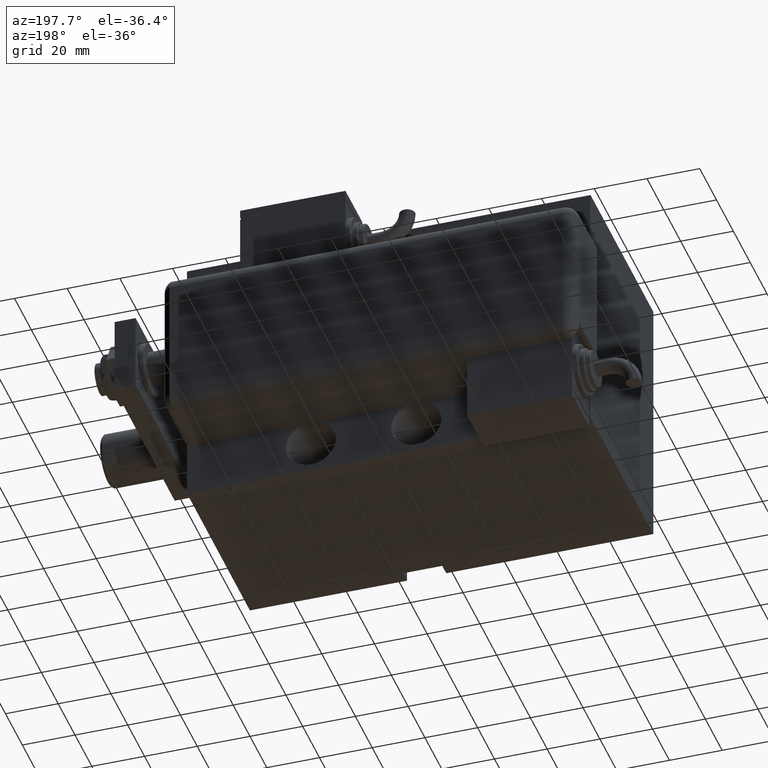
[diagram: clean part render]
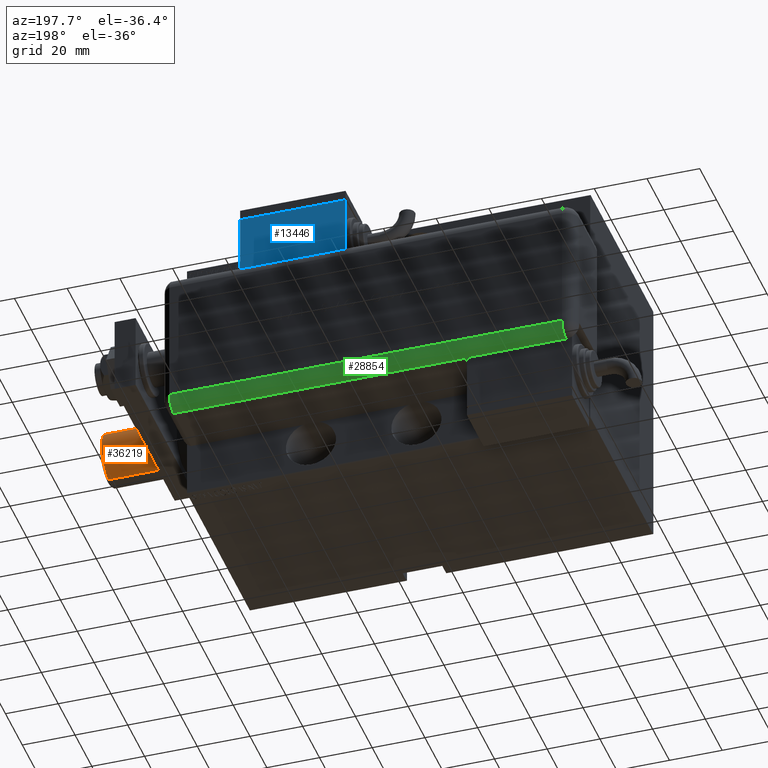
[diagram: same view with three faces highlighted in distinct colors, each labeled with its STEP entity id]
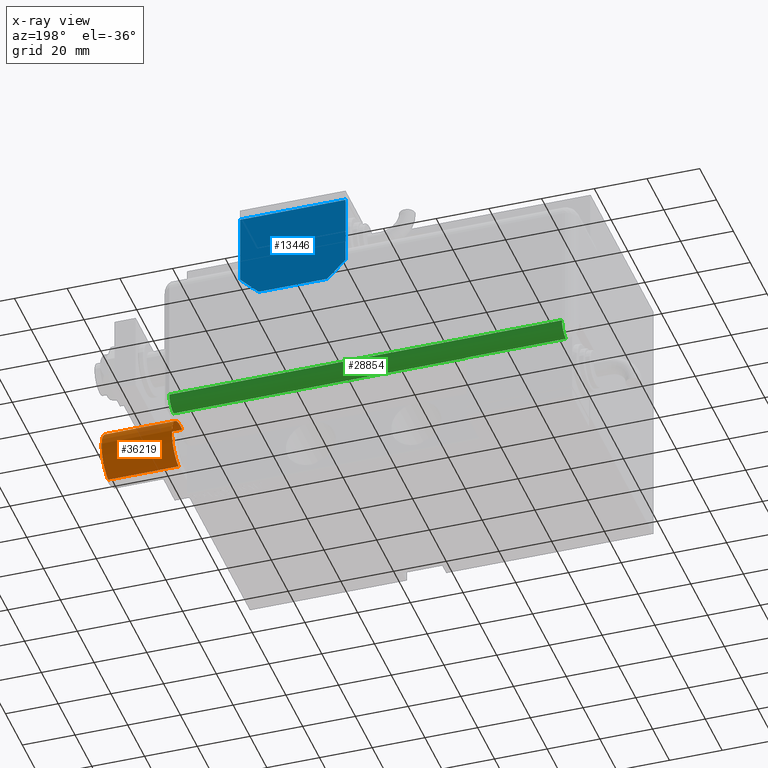
[diagram: x-ray of the same camera — body ghosted, the three highlighted faces saturated]
A machine part, auxiliary view with three faces highlighted in distinct colors.
The next image is the same camera in x-ray (body ghosted, the three faces saturated) — at least one of them is partly hidden behind the body in this view.
Their STEP definitions:

[orange] entity #36219 — the highlighted cylindrical surface (edge-blend (fillet) strip) has radius 10 mm, axis along (1, 0, -0).
#2151 = ORIENTED_EDGE ( 'NONE', *, *, #20491, .T. ) ;
#3145 = VECTOR ( 'NONE', #24875, 1000.000000000000000 ) ;
#3932 = VECTOR ( 'NONE', #18437, 1000.000000000000000 ) ;
#7261 = CARTESIAN_POINT ( 'NONE',  ( -10.00000000000000000, 0.000000000000000000, 27.50000000000000000 ) ) ;
#8634 = CARTESIAN_POINT ( 'NONE',  ( -10.00000000000000000, 0.000000000000000000, 0.7999999999999986011 ) ) ;
#10111 = CARTESIAN_POINT ( 'NONE',  ( 0.000000000000000000, 0.000000000000000000, 0.7999999999999986011 ) ) ;
#10425 = CYLINDRICAL_SURFACE ( 'NONE', #22939, 10.00000000000000000 ) ;
#11224 = VERTEX_POINT ( 'NONE', #42647 ) ;
#12083 = EDGE_CURVE ( 'NONE', #37926, #19839, #30976, .T. ) ;
#15507 = DIRECTION ( 'NONE',  ( 0.000000000000000000, 0.000000000000000000, 1.000000000000000000 ) ) ;
#17076 = DIRECTION ( 'NONE',  ( 1.000000000000000000, 0.000000000000000000, 0.000000000000000000 ) ) ;
#18437 = DIRECTION ( 'NONE',  ( -0.000000000000000000, -0.000000000000000000, -1.000000000000000000 ) ) ;
#19839 = VERTEX_POINT ( 'NONE', #8634 ) ;
#20491 = EDGE_CURVE ( 'NONE', #11224, #37926, #37571, .T. ) ;
#20596 = CARTESIAN_POINT ( 'NONE',  ( 10.00000000000000000, 1.224646799147353256E-15, 0.7999999999999986011 ) ) ;
#22115 = ORIENTED_EDGE ( 'NONE', *, *, #36572, .F. ) ;
#22692 = CARTESIAN_POINT ( 'NONE',  ( 10.00000000000000000, 1.224646799147353256E-15, 27.50000000000000000 ) ) ;
#22939 = AXIS2_PLACEMENT_3D ( 'NONE', #42661, #56941, #23498 ) ;
#23498 = DIRECTION ( 'NONE',  ( -1.000000000000000000, 0.000000000000000000, 0.000000000000000000 ) ) ;
#24080 = FACE_OUTER_BOUND ( 'NONE', #50498, .T. ) ;
#24818 = AXIS2_PLACEMENT_3D ( 'NONE', #34357, #15507, #57766 ) ;
#24875 = DIRECTION ( 'NONE',  ( -0.000000000000000000, -0.000000000000000000, -1.000000000000000000 ) ) ;
#25496 = ORIENTED_EDGE ( 'NONE', *, *, #12083, .T. ) ;
#28633 = DIRECTION ( 'NONE',  ( -0.000000000000000000, -0.000000000000000000, 1.000000000000000000 ) ) ;
#30976 = CIRCLE ( 'NONE', #40718, 10.00000000000000000 ) ;
#34357 = CARTESIAN_POINT ( 'NONE',  ( 0.000000000000000000, 0.000000000000000000, 27.50000000000000000 ) ) ;
#36219 = ADVANCED_FACE ( 'NONE', ( #24080 ), #10425, .T. ) ;
#36572 = EDGE_CURVE ( 'NONE', #11224, #59227, #51071, .T. ) ;
#37571 = LINE ( 'NONE', #22692, #3932 ) ;
#37926 = VERTEX_POINT ( 'NONE', #20596 ) ;
#40718 = AXIS2_PLACEMENT_3D ( 'NONE', #10111, #28633, #17076 ) ;
#42647 = CARTESIAN_POINT ( 'NONE',  ( 10.00000000000000000, 1.224646799147353256E-15, 27.50000000000000000 ) ) ;
#42661 = CARTESIAN_POINT ( 'NONE',  ( 0.000000000000000000, 0.000000000000000000, 27.50000000000000000 ) ) ;
#50498 = EDGE_LOOP ( 'NONE', ( #22115, #2151, #25496, #59147 ) ) ;
#51071 = CIRCLE ( 'NONE', #24818, 10.00000000000000000 ) ;
#52007 = CARTESIAN_POINT ( 'NONE',  ( -10.00000000000000000, 0.000000000000000000, 27.50000000000000000 ) ) ;
#52864 = LINE ( 'NONE', #7261, #3145 ) ;
#56075 = EDGE_CURVE ( 'NONE', #59227, #19839, #52864, .T. ) ;
#56941 = DIRECTION ( 'NONE',  ( -0.000000000000000000, -0.000000000000000000, -1.000000000000000000 ) ) ;
#57766 = DIRECTION ( 'NONE',  ( 1.000000000000000000, 0.000000000000000000, 0.000000000000000000 ) ) ;
#59147 = ORIENTED_EDGE ( 'NONE', *, *, #56075, .F. ) ;
#59227 = VERTEX_POINT ( 'NONE', #52007 ) ;

[blue] entity #13446 — the highlighted planar face has unit normal (0, 1, 0).
#3151 = EDGE_CURVE ( 'NONE', #9982, #7809, #26669, .T. ) ;
#4293 = CARTESIAN_POINT ( 'NONE',  ( -19.99999999999994316, -13.49999999999996092, 10.00000000000000000 ) ) ;
#4588 = DIRECTION ( 'NONE',  ( -1.284980352575421081E-16, -1.000000000000000000, -0.000000000000000000 ) ) ;
#5105 = CARTESIAN_POINT ( 'NONE',  ( 0.000000000000000000, 0.000000000000000000, 10.00000000000000000 ) ) ;
#5620 = EDGE_CURVE ( 'NONE', #41910, #9982, #35901, .T. ) ;
#6488 = EDGE_LOOP ( 'NONE', ( #27914, #43206, #8975, #29146, #46247, #18135, #35034 ) ) ;
#7809 = VERTEX_POINT ( 'NONE', #32777 ) ;
#7933 = CARTESIAN_POINT ( 'NONE',  ( 9.999999999999984013, 23.50000000000009592, 10.00000000000000000 ) ) ;
#8975 = ORIENTED_EDGE ( 'NONE', *, *, #45578, .T. ) ;
#9982 = VERTEX_POINT ( 'NONE', #42182 ) ;
#11278 = VECTOR ( 'NONE', #26466, 1000.000000000000114 ) ;
#13446 = ADVANCED_FACE ( 'NONE', ( #14235 ), #56790, .T. ) ;
#13657 = CARTESIAN_POINT ( 'NONE',  ( 20.00000000000005329, -13.49999999999996092, 10.00000000000000000 ) ) ;
#14235 = FACE_OUTER_BOUND ( 'NONE', #6488, .T. ) ;
#14540 = VECTOR ( 'NONE', #43845, 1000.000000000000000 ) ;
#15140 = DIRECTION ( 'NONE',  ( -1.284980352575421081E-16, -1.000000000000000000, -0.000000000000000000 ) ) ;
#17550 = VECTOR ( 'NONE', #4588, 1000.000000000000000 ) ;
#18135 = ORIENTED_EDGE ( 'NONE', *, *, #49076, .T. ) ;
#18506 = LINE ( 'NONE', #13657, #49544 ) ;
#19615 = VECTOR ( 'NONE', #15140, 1000.000000000000000 ) ;
#19689 = LINE ( 'NONE', #38248, #19615 ) ;
#20056 = VECTOR ( 'NONE', #41287, 1000.000000000000000 ) ;
#21720 = VERTEX_POINT ( 'NONE', #38708 ) ;
#24203 = VECTOR ( 'NONE', #52152, 1000.000000000000000 ) ;
#24239 = DIRECTION ( 'NONE',  ( 0.000000000000000000, 0.000000000000000000, 1.000000000000000000 ) ) ;
#24871 = EDGE_CURVE ( 'NONE', #34765, #21720, #19689, .T. ) ;
#25891 = CARTESIAN_POINT ( 'NONE',  ( -19.99999999999993960, 13.49999999999986500, 10.00000000000000000 ) ) ;
#26466 = DIRECTION ( 'NONE',  ( -0.7071067811865479058, 0.7071067811865470176, -0.000000000000000000 ) ) ;
#26669 = LINE ( 'NONE', #45252, #20056 ) ;
#27914 = ORIENTED_EDGE ( 'NONE', *, *, #5620, .T. ) ;
#28087 = CARTESIAN_POINT ( 'NONE',  ( 20.00000000000005329, -13.49999999999996092, 10.00000000000000000 ) ) ;
#29146 = ORIENTED_EDGE ( 'NONE', *, *, #24871, .T. ) ;
#29844 = LINE ( 'NONE', #25891, #14540 ) ;
#32777 = CARTESIAN_POINT ( 'NONE',  ( -12.99999999999994138, 20.50000000000009592, 10.00000000000000000 ) ) ;
#34695 = CARTESIAN_POINT ( 'NONE',  ( 20.00000000000005684, 13.50000000000003730, 10.00000000000000000 ) ) ;
#34765 = VERTEX_POINT ( 'NONE', #47801 ) ;
#34817 = CARTESIAN_POINT ( 'NONE',  ( -19.99999999999994316, -13.49999999999996092, 10.00000000000000000 ) ) ;
#35034 = ORIENTED_EDGE ( 'NONE', *, *, #49775, .T. ) ;
#35901 = LINE ( 'NONE', #7933, #11278 ) ;
#38248 = CARTESIAN_POINT ( 'NONE',  ( -19.99999999999994316, -13.49999999999996092, 10.00000000000000000 ) ) ;
#38708 = CARTESIAN_POINT ( 'NONE',  ( -19.99999999999993960, 2.569960705150834076E-15, 10.00000000000000000 ) ) ;
#41287 = DIRECTION ( 'NONE',  ( -1.000000000000000000, 0.000000000000000000, 0.000000000000000000 ) ) ;
#41910 = VERTEX_POINT ( 'NONE', #34695 ) ;
#42182 = CARTESIAN_POINT ( 'NONE',  ( 12.99999999999999112, 20.50000000000009592, 10.00000000000000000 ) ) ;
#43206 = ORIENTED_EDGE ( 'NONE', *, *, #3151, .T. ) ;
#43656 = AXIS2_PLACEMENT_3D ( 'NONE', #5105, #24239, #57092 ) ;
#43845 = DIRECTION ( 'NONE',  ( -0.7071067811865356934, -0.7071067811865593411, -0.000000000000000000 ) ) ;
#45252 = CARTESIAN_POINT ( 'NONE',  ( -10.00000000000004086, 20.50000000000009592, 10.00000000000000000 ) ) ;
#45578 = EDGE_CURVE ( 'NONE', #7809, #34765, #29844, .T. ) ;
#46247 = ORIENTED_EDGE ( 'NONE', *, *, #52506, .T. ) ;
#47593 = CARTESIAN_POINT ( 'NONE',  ( -19.99999999999994316, -13.49999999999996092, 10.00000000000000000 ) ) ;
#47801 = CARTESIAN_POINT ( 'NONE',  ( -19.99999999999993960, 13.49999999999986500, 10.00000000000000000 ) ) ;
#49076 = EDGE_CURVE ( 'NONE', #49127, #54629, #52746, .T. ) ;
#49127 = VERTEX_POINT ( 'NONE', #34817 ) ;
#49544 = VECTOR ( 'NONE', #50466, 1000.000000000000000 ) ;
#49775 = EDGE_CURVE ( 'NONE', #54629, #41910, #18506, .T. ) ;
#50466 = DIRECTION ( 'NONE',  ( 1.284980352575412699E-16, 1.000000000000000000, 0.000000000000000000 ) ) ;
#50530 = LINE ( 'NONE', #4293, #17550 ) ;
#52152 = DIRECTION ( 'NONE',  ( 1.000000000000000000, 0.000000000000000000, 0.000000000000000000 ) ) ;
#52506 = EDGE_CURVE ( 'NONE', #21720, #49127, #50530, .T. ) ;
#52746 = LINE ( 'NONE', #47593, #24203 ) ;
#54629 = VERTEX_POINT ( 'NONE', #28087 ) ;
#56790 = PLANE ( 'NONE',  #43656 ) ;
#57092 = DIRECTION ( 'NONE',  ( 1.000000000000000000, 0.000000000000000000, -0.000000000000000000 ) ) ;

[green] entity #28854 — the highlighted cylindrical surface (edge-blend (fillet) strip) has radius 5 mm, axis along (-1, -0, -0).
#373 = CARTESIAN_POINT ( 'NONE',  ( 23.99999999999999289, 25.79999999999998295, 154.0000000000000000 ) ) ;
#513 = AXIS2_PLACEMENT_3D ( 'NONE', #13685, #23969, #19416 ) ;
#1646 = LINE ( 'NONE', #20173, #58803 ) ;
#2351 = VERTEX_POINT ( 'NONE', #33919 ) ;
#2694 = ORIENTED_EDGE ( 'NONE', *, *, #46808, .F. ) ;
#4028 = DIRECTION ( 'NONE',  ( -0.000000000000000000, -0.000000000000000000, 1.000000000000000000 ) ) ;
#4048 = ORIENTED_EDGE ( 'NONE', *, *, #25225, .T. ) ;
#7094 = ORIENTED_EDGE ( 'NONE', *, *, #22507, .F. ) ;
#7928 = CIRCLE ( 'NONE', #39983, 5.000000000000000888 ) ;
#8235 = ORIENTED_EDGE ( 'NONE', *, *, #30272, .F. ) ;
#10098 = LINE ( 'NONE', #373, #47595 ) ;
#10604 = ORIENTED_EDGE ( 'NONE', *, *, #16329, .F. ) ;
#12074 = VERTEX_POINT ( 'NONE', #42344 ) ;
#13685 = CARTESIAN_POINT ( 'NONE',  ( 23.99999999999999289, 20.79999999999998295, 154.0000000000000000 ) ) ;
#14653 = DIRECTION ( 'NONE',  ( 0.000000000000000000, 0.000000000000000000, -1.000000000000000000 ) ) ;
#16301 = DIRECTION ( 'NONE',  ( 1.000000000000000000, -6.383782391594648845E-14, 0.000000000000000000 ) ) ;
#16329 = EDGE_CURVE ( 'NONE', #22068, #12074, #10098, .T. ) ;
#17278 = ORIENTED_EDGE ( 'NONE', *, *, #40020, .F. ) ;
#19416 = DIRECTION ( 'NONE',  ( -1.000000000000000000, 0.000000000000000000, 0.000000000000000000 ) ) ;
#20173 = CARTESIAN_POINT ( 'NONE',  ( 28.99599839871871154, 20.99999999999997868, 154.0000000000000000 ) ) ;
#21152 = DIRECTION ( 'NONE',  ( -0.000000000000000000, 0.000000000000000000, -1.000000000000000000 ) ) ;
#22068 = VERTEX_POINT ( 'NONE', #26151 ) ;
#22507 = EDGE_CURVE ( 'NONE', #2351, #22068, #7928, .T. ) ;
#22859 = CARTESIAN_POINT ( 'NONE',  ( 28.99599839871871154, 20.99999999999999289, 43.00000000000000000 ) ) ;
#23070 = DIRECTION ( 'NONE',  ( -0.000000000000000000, -0.000000000000000000, 1.000000000000000000 ) ) ;
#23157 = DIRECTION ( 'NONE',  ( -1.000000000000000000, 0.000000000000000000, 0.000000000000000000 ) ) ;
#23239 = DIRECTION ( 'NONE',  ( -1.000000000000000000, 0.000000000000000000, 0.000000000000000000 ) ) ;
#23451 = CARTESIAN_POINT ( 'NONE',  ( 28.99999999999999645, 20.79999999999998295, 43.00000000000000000 ) ) ;
#23969 = DIRECTION ( 'NONE',  ( 0.000000000000000000, 0.000000000000000000, -1.000000000000000000 ) ) ;
#24194 = CARTESIAN_POINT ( 'NONE',  ( 23.99999999999999289, 20.79999999999998295, 43.00000000000000000 ) ) ;
#25225 = EDGE_CURVE ( 'NONE', #28790, #12074, #33250, .T. ) ;
#26151 = CARTESIAN_POINT ( 'NONE',  ( 23.99999999999999289, 25.79999999999998295, 154.0000000000000000 ) ) ;
#26185 = EDGE_LOOP ( 'NONE', ( #2694, #8235, #4048, #10604, #7094, #17278 ) ) ;
#27951 = FACE_OUTER_BOUND ( 'NONE', #26185, .T. ) ;
#28790 = VERTEX_POINT ( 'NONE', #45333 ) ;
#28854 = ADVANCED_FACE ( 'NONE', ( #27951 ), #47104, .T. ) ;
#30272 = EDGE_CURVE ( 'NONE', #28790, #31413, #1646, .T. ) ;
#30964 = AXIS2_PLACEMENT_3D ( 'NONE', #24194, #21152, #16301 ) ;
#31299 = LINE ( 'NONE', #49864, #53141 ) ;
#31413 = VERTEX_POINT ( 'NONE', #22859 ) ;
#32952 = DIRECTION ( 'NONE',  ( -0.000000000000000000, -0.000000000000000000, 1.000000000000000000 ) ) ;
#33250 = CIRCLE ( 'NONE', #58508, 5.000000000000000888 ) ;
#33850 = CIRCLE ( 'NONE', #30964, 5.000000000000000888 ) ;
#33919 = CARTESIAN_POINT ( 'NONE',  ( 28.99999999999999645, 20.79999999999998295, 154.0000000000000000 ) ) ;
#37437 = CARTESIAN_POINT ( 'NONE',  ( 23.99999999999999289, 20.79999999999998295, 5.000000000000004441 ) ) ;
#39983 = AXIS2_PLACEMENT_3D ( 'NONE', #42093, #32952, #23239 ) ;
#40020 = EDGE_CURVE ( 'NONE', #46024, #2351, #31299, .T. ) ;
#42093 = CARTESIAN_POINT ( 'NONE',  ( 23.99999999999999289, 20.79999999999998295, 154.0000000000000000 ) ) ;
#42344 = CARTESIAN_POINT ( 'NONE',  ( 23.99999999999999289, 25.79999999999998295, 5.000000000000004441 ) ) ;
#43617 = DIRECTION ( 'NONE',  ( -0.000000000000000000, -0.000000000000000000, 1.000000000000000000 ) ) ;
#45333 = CARTESIAN_POINT ( 'NONE',  ( 28.99599839871871154, 21.00000000000000000, 5.000000000000004441 ) ) ;
#46024 = VERTEX_POINT ( 'NONE', #23451 ) ;
#46808 = EDGE_CURVE ( 'NONE', #31413, #46024, #33850, .T. ) ;
#47104 = CYLINDRICAL_SURFACE ( 'NONE', #513, 5.000000000000000888 ) ;
#47595 = VECTOR ( 'NONE', #14653, 1000.000000000000000 ) ;
#49864 = CARTESIAN_POINT ( 'NONE',  ( 28.99999999999999645, 20.79999999999998295, 154.0000000000000000 ) ) ;
#53141 = VECTOR ( 'NONE', #23070, 1000.000000000000000 ) ;
#58508 = AXIS2_PLACEMENT_3D ( 'NONE', #37437, #4028, #23157 ) ;
#58803 = VECTOR ( 'NONE', #43617, 1000.000000000000000 ) ;